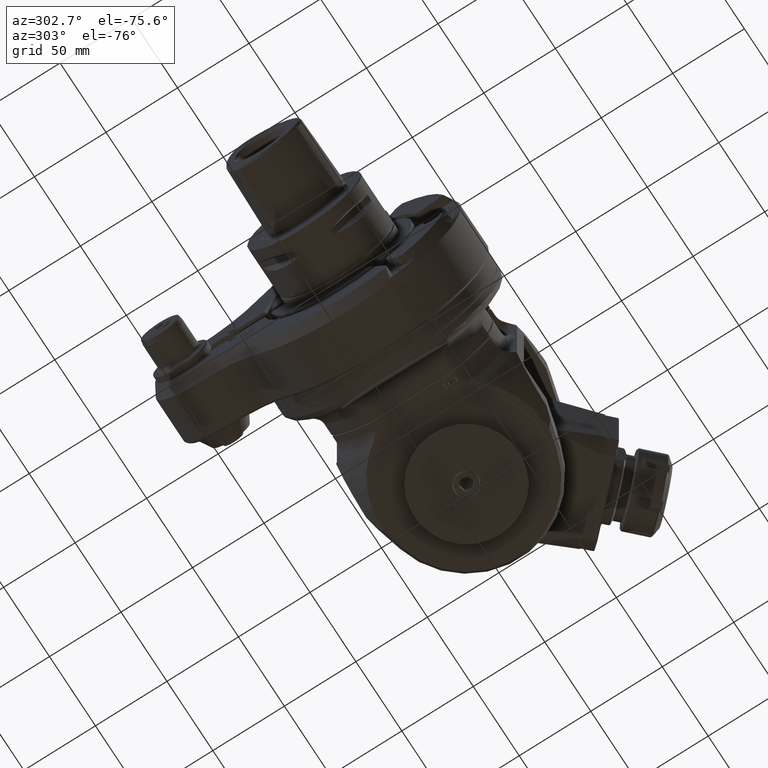
[diagram: clean part render]
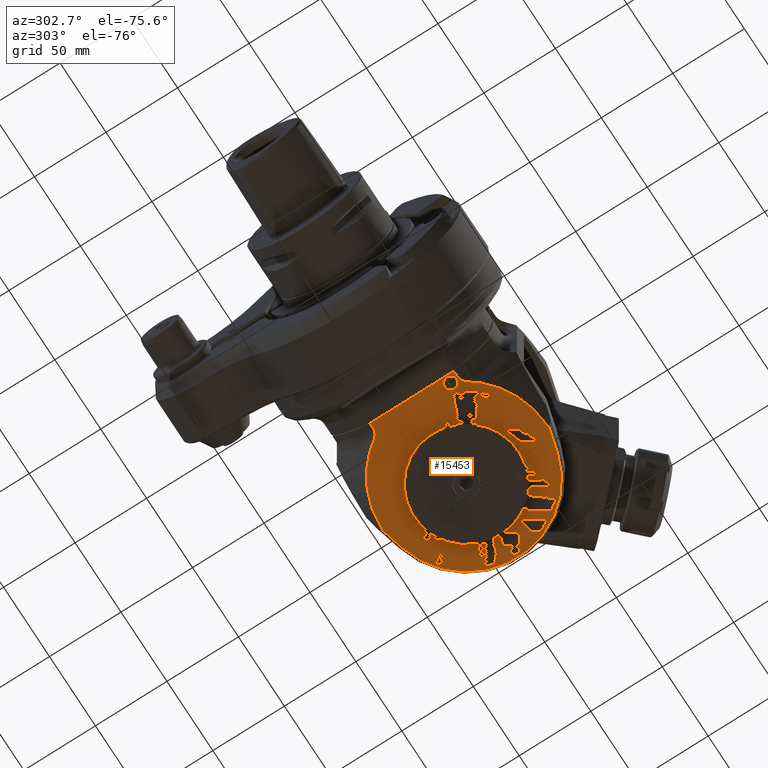
[diagram: same view with one face highlighted and labeled with its STEP entity id]
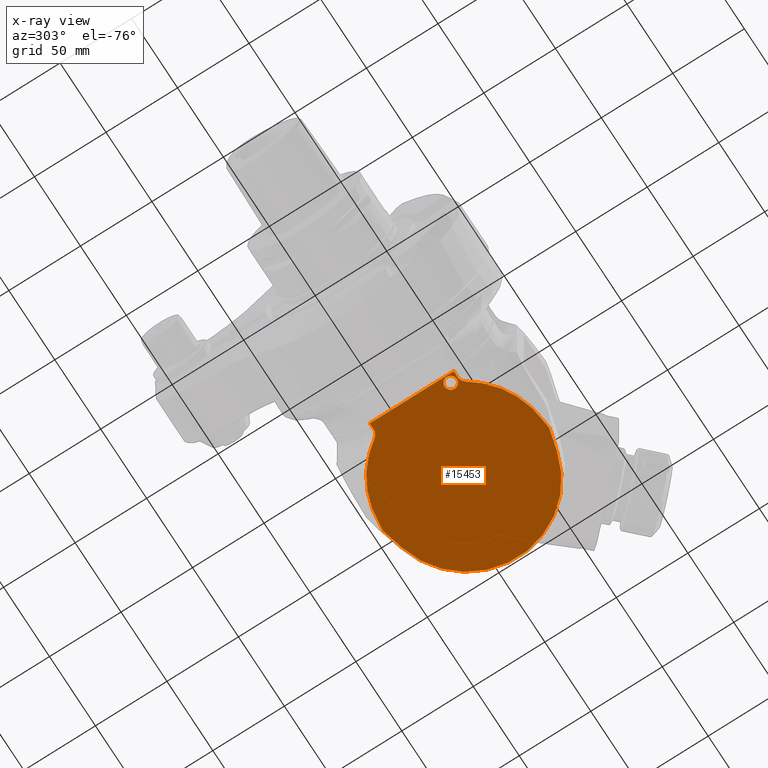
[diagram: x-ray of the same camera — body ghosted, the highlighted face saturated]
A machine part, auxiliary view. The second image highlights one B-rep face of the part: STEP entity #15453.
The next image is the same camera in x-ray: the body ghosted, the highlighted face saturated — about 0% of this face is hidden behind the body in this view.
In plain terms, the highlighted planar face has unit normal (-0, 0, -1).
Its self-contained STEP definition (entity closure, byte-faithful):
#185=(
BOUNDED_CURVE()
B_SPLINE_CURVE(2,(#42199,#42200,#42201),.UNSPECIFIED.,.F.,.F.)
B_SPLINE_CURVE_WITH_KNOTS((3,3),(3.97641757466849,5.5576022502087),
 .UNSPECIFIED.)
CURVE()
GEOMETRIC_REPRESENTATION_ITEM()
RATIONAL_B_SPLINE_CURVE((1.05493511130418,1.06184725860333,1.06557027716707))
REPRESENTATION_ITEM('')
);
#186=(
BOUNDED_CURVE()
B_SPLINE_CURVE(2,(#42205,#42206,#42207),.UNSPECIFIED.,.F.,.F.)
B_SPLINE_CURVE_WITH_KNOTS((3,3),(4.21087527428742,5.4993080047375),
 .UNSPECIFIED.)
CURVE()
GEOMETRIC_REPRESENTATION_ITEM()
RATIONAL_B_SPLINE_CURVE((1.02909414847827,1.0314714000163,1.03257956455598))
REPRESENTATION_ITEM('')
);
#187=(
BOUNDED_CURVE()
B_SPLINE_CURVE(2,(#42211,#42212,#42213),.UNSPECIFIED.,.F.,.F.)
B_SPLINE_CURVE_WITH_KNOTS((3,3),(-5.78296642883947,-4.56247870674448),
 .UNSPECIFIED.)
CURVE()
GEOMETRIC_REPRESENTATION_ITEM()
RATIONAL_B_SPLINE_CURVE((1.01370494799349,1.01352833042979,1.01281582283803))
REPRESENTATION_ITEM('')
);
#188=(
BOUNDED_CURVE()
B_SPLINE_CURVE(2,(#42219,#42220,#42221),.UNSPECIFIED.,.F.,.F.)
B_SPLINE_CURVE_WITH_KNOTS((3,3),(4.9276476032932,6.44408041212203),
 .UNSPECIFIED.)
CURVE()
GEOMETRIC_REPRESENTATION_ITEM()
RATIONAL_B_SPLINE_CURVE((1.00194441124222,1.00203033423097,1.00198499806283))
REPRESENTATION_ITEM('')
);
#189=(
BOUNDED_CURVE()
B_SPLINE_CURVE(2,(#42247,#42248,#42249),.UNSPECIFIED.,.F.,.F.)
B_SPLINE_CURVE_WITH_KNOTS((3,3),(5.39654583375374,6.91297864258258),
 .UNSPECIFIED.)
CURVE()
GEOMETRIC_REPRESENTATION_ITEM()
RATIONAL_B_SPLINE_CURVE((1.00198499806283,1.00203033423097,1.00194441124222))
REPRESENTATION_ITEM('')
);
#190=(
BOUNDED_CURVE()
B_SPLINE_CURVE(2,(#42253,#42254,#42255),.UNSPECIFIED.,.F.,.F.)
B_SPLINE_CURVE_WITH_KNOTS((3,3),(-7.80794603446904,-6.5874582339345),
 .UNSPECIFIED.)
CURVE()
GEOMETRIC_REPRESENTATION_ITEM()
RATIONAL_B_SPLINE_CURVE((1.01281582274644,1.01352833041844,1.01370494799349))
REPRESENTATION_ITEM('')
);
#191=(
BOUNDED_CURVE()
B_SPLINE_CURVE(2,(#42284,#42285,#42286),.UNSPECIFIED.,.F.,.F.)
B_SPLINE_CURVE_WITH_KNOTS((3,3),(3.97641757466849,5.55760225022971),
 .UNSPECIFIED.)
CURVE()
GEOMETRIC_REPRESENTATION_ITEM()
RATIONAL_B_SPLINE_CURVE((1.05493511130418,1.06184725860342,1.06557027716717))
REPRESENTATION_ITEM('')
);
#192=(
BOUNDED_CURVE()
B_SPLINE_CURVE(2,(#42287,#42288,#42289),.UNSPECIFIED.,.F.,.F.)
B_SPLINE_CURVE_WITH_KNOTS((3,3),(4.2108752743074,5.49930792285376),
 .UNSPECIFIED.)
CURVE()
GEOMETRIC_REPRESENTATION_ITEM()
RATIONAL_B_SPLINE_CURVE((1.02909414847834,1.03147139986524,1.03257956441513))
REPRESENTATION_ITEM('')
);
#193=(
BOUNDED_CURVE()
B_SPLINE_CURVE(2,(#42292,#42293,#42294),.UNSPECIFIED.,.F.,.F.)
B_SPLINE_CURVE_WITH_KNOTS((3,3),(-12.3860704332573,-11.2188219376098),
 .UNSPECIFIED.)
CURVE()
GEOMETRIC_REPRESENTATION_ITEM()
RATIONAL_B_SPLINE_CURVE((1.08263324868793,1.09055439798371,1.09624872599704))
REPRESENTATION_ITEM('')
);
#613=FACE_BOUND('',#2823,.T.);
#846=B_SPLINE_CURVE_WITH_KNOTS('',3,(#42262,#42263,#42264,#42265,#42266,
#42267,#42268,#42269,#42270,#42271),.UNSPECIFIED.,.F.,.F.,(4,2,2,2,4),(3.30273127929266,
3.42694787238684,3.65852779823939,3.81616582492057,3.95171561482115),
 .UNSPECIFIED.);
#847=B_SPLINE_CURVE_WITH_KNOTS('',3,(#42273,#42274,#42275,#42276,#42277,
#42278,#42279,#42280,#42281,#42282),.UNSPECIFIED.,.F.,.F.,(4,3,3,4),(0.,
0.3333333333333,0.6666666666667,1.),.UNSPECIFIED.);
#848=B_SPLINE_CURVE_WITH_KNOTS('',3,(#42296,#42297,#42298,#42299,#42300,
#42301,#42302,#42303,#42304,#42305),.UNSPECIFIED.,.F.,.F.,(4,2,2,2,4),(-4.60069995037123,
-4.47648335725547,-4.24490343140291,-4.08726540472174,-3.95171561482115),
 .UNSPECIFIED.);
#1151=PLANE('',#16877);
#1850=FACE_OUTER_BOUND('',#2822,.T.);
#2822=EDGE_LOOP('',(#12559,#12560,#12561,#12562,#12563,#12564,#12565,#12566,
#12567,#12568,#12569,#12570,#12571,#12572,#12573,#12574,#12575,#12576));
#2823=EDGE_LOOP('',(#12577));
#3947=LINE('',#42241,#4990);
#3948=LINE('',#42260,#4991);
#3949=LINE('',#42290,#4992);
#3950=LINE('',#42307,#4993);
#3951=LINE('',#42308,#4994);
#4990=VECTOR('',#20060,15.2801237009804);
#4991=VECTOR('',#20077,4.442693185413);
#4992=VECTOR('',#20078,15.2801237009804);
#4993=VECTOR('',#20079,4.442693185413);
#4994=VECTOR('',#20080,58.68560300449);
#5896=CIRCLE('',#16868,56.);
#5899=CIRCLE('',#16878,4.25);
#7060=VERTEX_POINT('',#42196);
#7061=VERTEX_POINT('',#42198);
#7062=VERTEX_POINT('',#42204);
#7063=VERTEX_POINT('',#42210);
#7065=VERTEX_POINT('',#42218);
#7068=VERTEX_POINT('',#42232);
#7069=VERTEX_POINT('',#42234);
#7071=VERTEX_POINT('',#42240);
#7072=VERTEX_POINT('',#42246);
#7073=VERTEX_POINT('',#42252);
#7074=VERTEX_POINT('',#42258);
#7075=VERTEX_POINT('',#42259);
#7076=VERTEX_POINT('',#42261);
#7077=VERTEX_POINT('',#42272);
#7078=VERTEX_POINT('',#42283);
#7079=VERTEX_POINT('',#42291);
#7080=VERTEX_POINT('',#42295);
#7081=VERTEX_POINT('',#42306);
#7082=VERTEX_POINT('',#42309);
#9012=EDGE_CURVE('',#7060,#7061,#185,.T.);
#9014=EDGE_CURVE('',#7061,#7062,#186,.T.);
#9016=EDGE_CURVE('',#7063,#7062,#187,.T.);
#9019=EDGE_CURVE('',#7063,#7065,#188,.T.);
#9026=EDGE_CURVE('',#7069,#7068,#5896,.T.);
#9029=EDGE_CURVE('',#7071,#7069,#3947,.T.);
#9032=EDGE_CURVE('',#7071,#7072,#189,.T.);
#9034=EDGE_CURVE('',#7073,#7072,#190,.T.);
#9036=EDGE_CURVE('',#7074,#7075,#3948,.T.);
#9037=EDGE_CURVE('',#7076,#7074,#846,.T.);
#9038=EDGE_CURVE('',#7076,#7077,#847,.T.);
#9039=EDGE_CURVE('',#7077,#7078,#191,.T.);
#9040=EDGE_CURVE('',#7078,#7073,#192,.T.);
#9041=EDGE_CURVE('',#7068,#7065,#3949,.T.);
#9042=EDGE_CURVE('',#7079,#7060,#193,.T.);
#9043=EDGE_CURVE('',#7079,#7080,#848,.T.);
#9044=EDGE_CURVE('',#7081,#7080,#3950,.T.);
#9045=EDGE_CURVE('',#7075,#7081,#3951,.T.);
#9046=EDGE_CURVE('',#7082,#7082,#5899,.T.);
#12559=ORIENTED_EDGE('',*,*,#9036,.F.);
#12560=ORIENTED_EDGE('',*,*,#9037,.F.);
#12561=ORIENTED_EDGE('',*,*,#9038,.T.);
#12562=ORIENTED_EDGE('',*,*,#9039,.T.);
#12563=ORIENTED_EDGE('',*,*,#9040,.T.);
#12564=ORIENTED_EDGE('',*,*,#9034,.T.);
#12565=ORIENTED_EDGE('',*,*,#9032,.F.);
#12566=ORIENTED_EDGE('',*,*,#9029,.T.);
#12567=ORIENTED_EDGE('',*,*,#9026,.T.);
#12568=ORIENTED_EDGE('',*,*,#9041,.T.);
#12569=ORIENTED_EDGE('',*,*,#9019,.F.);
#12570=ORIENTED_EDGE('',*,*,#9016,.T.);
#12571=ORIENTED_EDGE('',*,*,#9014,.F.);
#12572=ORIENTED_EDGE('',*,*,#9012,.F.);
#12573=ORIENTED_EDGE('',*,*,#9042,.F.);
#12574=ORIENTED_EDGE('',*,*,#9043,.T.);
#12575=ORIENTED_EDGE('',*,*,#9044,.F.);
#12576=ORIENTED_EDGE('',*,*,#9045,.F.);
#12577=ORIENTED_EDGE('',*,*,#9046,.T.);
#15453=ADVANCED_FACE('',(#1850,#613),#1151,.T.);
#16868=AXIS2_PLACEMENT_3D('',#42235,#20054,#20055);
#16877=AXIS2_PLACEMENT_3D('',#42257,#20075,#20076);
#16878=AXIS2_PLACEMENT_3D('',#42310,#20081,#20082);
#20054=DIRECTION('center_axis',(0.,-1.,0.));
#20055=DIRECTION('ref_axis',(0.258819045102612,0.,-0.965925826289044));
#20060=DIRECTION('',(0.965925826289076,0.,0.258819045102493));
#20075=DIRECTION('center_axis',(0.,-1.,0.));
#20076=DIRECTION('ref_axis',(0.,0.,1.));
#20077=DIRECTION('',(-1.,0.,0.));
#20078=DIRECTION('',(-0.965925826289076,0.,0.258819045102493));
#20079=DIRECTION('',(1.,-2.878832435621E-14,-1.287477839264E-13));
#20080=DIRECTION('',(0.,0.,1.));
#20081=DIRECTION('center_axis',(0.,1.,0.));
#20082=DIRECTION('ref_axis',(0.,0.,-1.));
#42196=CARTESIAN_POINT('',(15.41280484256,-58.,39.19183588453));
#42198=CARTESIAN_POINT('',(24.346256946043,-57.9999996282353,47.1546671667147));
#42199=CARTESIAN_POINT('Ctrl Pts',(15.4128048425531,-58.,39.1918358845219));
#42200=CARTESIAN_POINT('Ctrl Pts',(19.4676117206007,-58.,43.0426004847905));
#42201=CARTESIAN_POINT('Ctrl Pts',(24.3462570767566,-58.,47.1546670132198));
#42204=CARTESIAN_POINT('',(33.9624270813262,-57.9999998925286,52.5267792503384));
#42205=CARTESIAN_POINT('Ctrl Pts',(24.346257221298,-58.,47.1546666914368));
#42206=CARTESIAN_POINT('Ctrl Pts',(28.8952209908924,-58.,49.7792772231917));
#42207=CARTESIAN_POINT('Ctrl Pts',(33.9624271084164,-58.,52.5267792031591));
#42210=CARTESIAN_POINT('',(44.7911162035684,-58.0000000003531,56.1832937791759));
#42211=CARTESIAN_POINT('Ctrl Pts',(44.791116203559,-58.,56.183293779205));
#42212=CARTESIAN_POINT('Ctrl Pts',(39.1946576319966,-58.,54.3262902546437));
#42213=CARTESIAN_POINT('Ctrl Pts',(33.9624271354447,-58.,52.5267790959853));
#42218=CARTESIAN_POINT('',(59.73440041408,-58.,58.04663329752));
#42219=CARTESIAN_POINT('Ctrl Pts',(44.7911162034834,-58.,56.1832937798522));
#42220=CARTESIAN_POINT('Ctrl Pts',(52.1408795126409,-58.,57.1074820886071));
#42221=CARTESIAN_POINT('Ctrl Pts',(59.734400414101,-58.,58.0466332975207));
#42232=CARTESIAN_POINT('',(74.49386652575,-58.,54.09184627219));
#42234=CARTESIAN_POINT('',(74.49386652574,-58.,-54.09184627219));
#42235=CARTESIAN_POINT('Origin',(60.,-58.,0.));
#42240=CARTESIAN_POINT('',(59.73440041408,-58.,-58.04663329752));
#42241=CARTESIAN_POINT('',(59.73440041408,-58.,-58.04663329752));
#42246=CARTESIAN_POINT('',(44.7911162035684,-58.0000000003531,-56.1832937791759));
#42247=CARTESIAN_POINT('Ctrl Pts',(59.7344004141011,-58.,-58.0466332975207));
#42248=CARTESIAN_POINT('Ctrl Pts',(52.1408795126409,-58.,-57.1074820886071));
#42249=CARTESIAN_POINT('Ctrl Pts',(44.7911162034834,-58.,-56.1832937798522));
#42252=CARTESIAN_POINT('',(33.9624264675121,-58.0000000102887,-52.5267788497184));
#42253=CARTESIAN_POINT('Ctrl Pts',(33.9624264624308,-58.,-52.5267788645169));
#42254=CARTESIAN_POINT('Ctrl Pts',(39.1946572722549,-58.,-54.326290135275));
#42255=CARTESIAN_POINT('Ctrl Pts',(44.7911162035589,-58.,-56.183293779205));
#42257=CARTESIAN_POINT('Origin',(0.,-58.,-58.));
#42258=CARTESIAN_POINT('',(4.942693185413,-58.,-29.34280150224));
#42259=CARTESIAN_POINT('',(0.5,-58.,-29.34280150224));
#42260=CARTESIAN_POINT('',(4.942693185413,-58.,-29.34280150224));
#42261=CARTESIAN_POINT('',(10.53462221999,-58.00000000001,-32.95715356073));
#42262=CARTESIAN_POINT('Ctrl Pts',(10.5346222199831,-58.,-32.9571535607351));
#42263=CARTESIAN_POINT('Ctrl Pts',(10.2737390243457,-58.,-32.6009712538053));
#42264=CARTESIAN_POINT('Ctrl Pts',(9.99138927136104,-58.,-32.2476372013997));
#42265=CARTESIAN_POINT('Ctrl Pts',(9.1317480283305,-58.,-31.2854248181021));
#42266=CARTESIAN_POINT('Ctrl Pts',(8.50802018936704,-58.,-30.7216662917985));
#42267=CARTESIAN_POINT('Ctrl Pts',(7.42503025646266,-58.,-30.0072701439533));
#42268=CARTESIAN_POINT('Ctrl Pts',(6.86170015154663,-58.,-29.723976740941));
#42269=CARTESIAN_POINT('Ctrl Pts',(5.92966346858452,-58.,-29.4300231970462));
#42270=CARTESIAN_POINT('Ctrl Pts',(5.39452581841494,-58.,-29.3428015022424));
#42271=CARTESIAN_POINT('Ctrl Pts',(4.942693185413,-58.,-29.3428015022424));
#42272=CARTESIAN_POINT('',(15.41280484256,-58.,-39.19183588453));
#42273=CARTESIAN_POINT('Ctrl Pts',(10.5346222199923,-58.0000000000069,-32.9571535607283));
#42274=CARTESIAN_POINT('Ctrl Pts',(11.0362815758412,-58.0000000000085,-33.6420661562992));
#42275=CARTESIAN_POINT('Ctrl Pts',(11.5515772663648,-58.0000000837512,-34.3294583416178));
#42276=CARTESIAN_POINT('Ctrl Pts',(12.0803856070476,-58.0000007124649,-35.0195367444207));
#42277=CARTESIAN_POINT('Ctrl Pts',(12.6091939477305,-58.0000013411786,-35.7096151472238));
#42278=CARTESIAN_POINT('Ctrl Pts',(13.15151590771,-58.0000012825059,-36.4023790281084));
#42279=CARTESIAN_POINT('Ctrl Pts',(13.7069971294738,-58.0000006147188,-37.0977399710626));
#42280=CARTESIAN_POINT('Ctrl Pts',(14.2624783512374,-57.9999999469316,-37.7931009140166));
#42281=CARTESIAN_POINT('Ctrl Pts',(14.8311177664603,-57.9999999999996,-38.4910597798098));
#42282=CARTESIAN_POINT('Ctrl Pts',(15.4128048425625,-57.999999999997,-39.191835884528));
#42283=CARTESIAN_POINT('',(24.3462569461611,-57.9999996282038,-47.1546671668366));
#42284=CARTESIAN_POINT('Ctrl Pts',(15.4128048425531,-58.,-39.1918358845219));
#42285=CARTESIAN_POINT('Ctrl Pts',(19.4676117206542,-58.,-43.0426004848413));
#42286=CARTESIAN_POINT('Ctrl Pts',(24.3462570768858,-58.,-47.1546670133287));
#42287=CARTESIAN_POINT('Ctrl Pts',(24.3462572214395,-58.,-47.1546666915184));
#42288=CARTESIAN_POINT('Ctrl Pts',(28.8952207025372,-58.,-49.779277056817));
#42289=CARTESIAN_POINT('Ctrl Pts',(33.9624264650355,-58.,-52.52677885431));
#42290=CARTESIAN_POINT('',(74.49386652574,-58.,54.09184627219));
#42291=CARTESIAN_POINT('',(10.53462222012,-58.,32.95715356092));
#42292=CARTESIAN_POINT('Ctrl Pts',(10.5346222201055,-58.,32.9571535608951));
#42293=CARTESIAN_POINT('Ctrl Pts',(12.7629419100332,-58.,35.9994654500208));
#42294=CARTESIAN_POINT('Ctrl Pts',(15.4128048426683,-58.,39.1918358846511));
#42295=CARTESIAN_POINT('',(4.942693185413,-58.,29.34280150224));
#42296=CARTESIAN_POINT('Ctrl Pts',(10.5346222201191,-58.,32.9571535609207));
#42297=CARTESIAN_POINT('Ctrl Pts',(10.2737390244438,-58.,32.6009712539281));
#42298=CARTESIAN_POINT('Ctrl Pts',(9.99138927141318,-58.,32.247637201458));
#42299=CARTESIAN_POINT('Ctrl Pts',(9.1317480283305,-58.,31.2854248181021));
#42300=CARTESIAN_POINT('Ctrl Pts',(8.50802018936704,-58.,30.7216662917985));
#42301=CARTESIAN_POINT('Ctrl Pts',(7.42503025646266,-58.,30.0072701439533));
#42302=CARTESIAN_POINT('Ctrl Pts',(6.86170015154663,-58.,29.723976740941));
#42303=CARTESIAN_POINT('Ctrl Pts',(5.92966346858452,-58.,29.4300231970462));
#42304=CARTESIAN_POINT('Ctrl Pts',(5.39452581841494,-58.,29.3428015022424));
#42305=CARTESIAN_POINT('Ctrl Pts',(4.942693185413,-58.,29.3428015022424));
#42306=CARTESIAN_POINT('',(0.5,-58.,29.34280150224));
#42307=CARTESIAN_POINT('',(0.5,-58.,29.34280150224));
#42308=CARTESIAN_POINT('',(0.5,-58.,-29.34280150224));
#42309=CARTESIAN_POINT('',(5.5,-58.,28.25));
#42310=CARTESIAN_POINT('Origin',(5.5,-58.,24.));